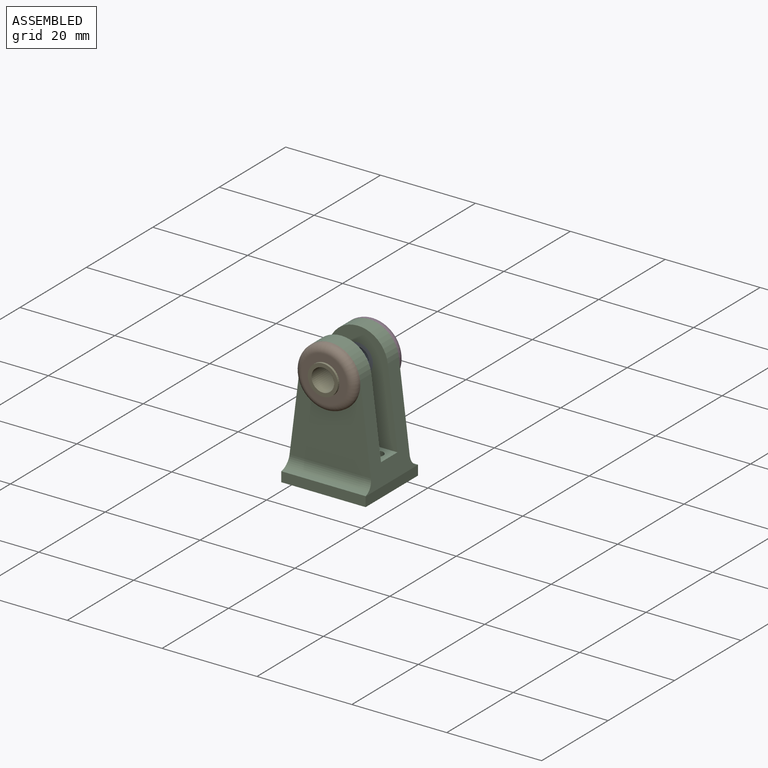
[diagram: assembled view]
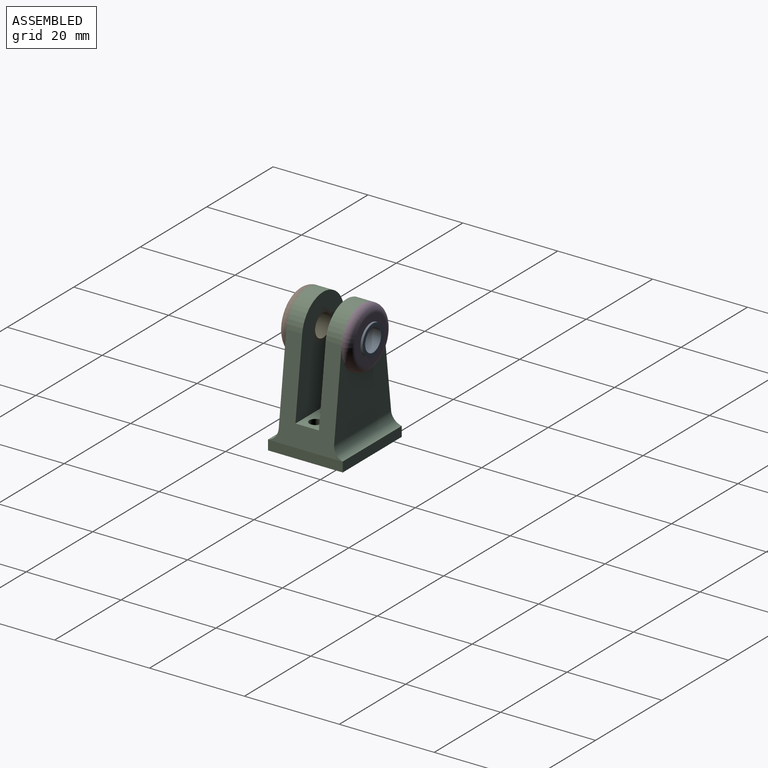
[diagram: assembled view, second angle]
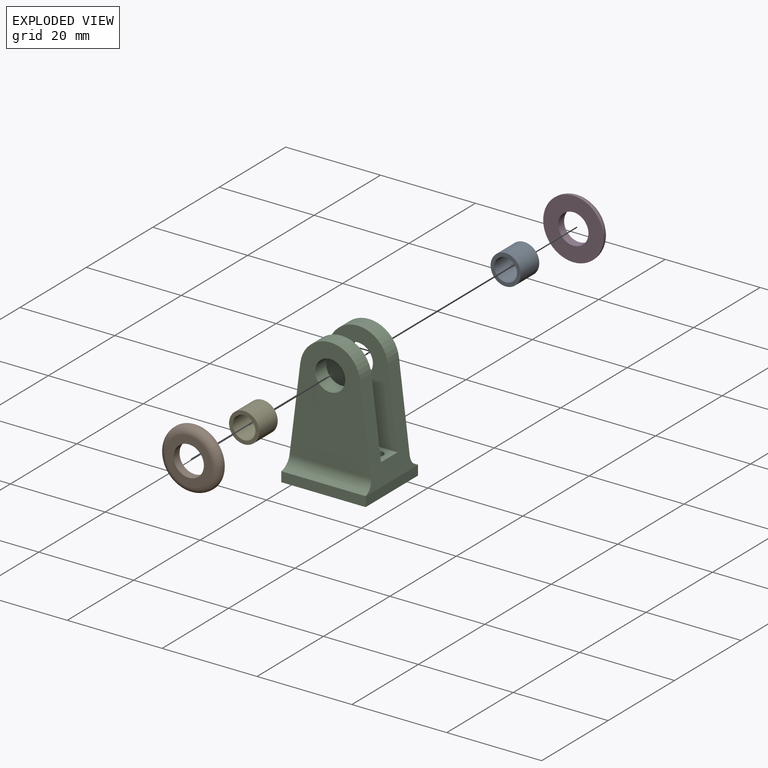
[diagram: exploded view]
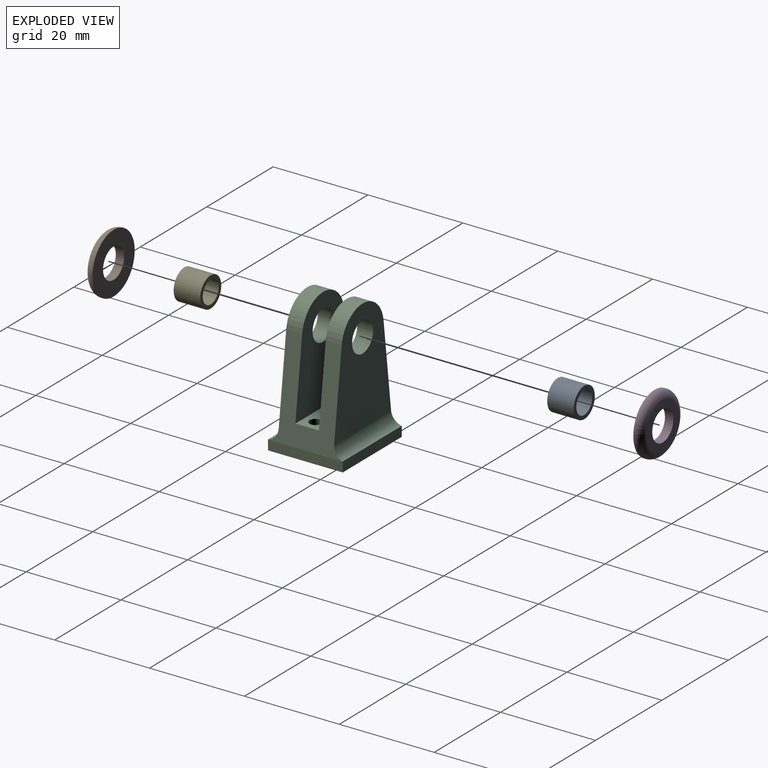
[diagram: exploded view, second angle]
ASSEMBLY  parts=5 mates=4
PART A: 4 faces, bbox 6.4x5.6x6.4 mm
  f0: cylinder r=2.39mm len=5.59mm, axis (0,1,0), area 83.8mm2, adj f2,f3
  f1: cylinder r=3.18mm len=6.36mm, axis (0,1,0), area 111.6mm2, adj f2,f3
  f2: plane 6.36x6.36mm, normal (0,-1,0), area 13.8mm2, adj f0,f1
  f3: plane 6.36x6.36mm, normal (0,1,0), area 13.8mm2, adj f0,f1
PART B: 5 faces, bbox 13.7x2.6x13.7 mm
  f0: cylinder r=3.19mm len=6.38mm, axis (0,-1,0), area 35.6mm2, adj f2,f3
  f1: cylinder r=6.35mm len=12.7mm, axis (0,-1,0), area 10.1mm2, adj f3,f4
  f2: plane 9.65x9.65mm, normal (0,1,0), area 41.2mm2, adj f0,f4
  f3: plane 12.7x12.7mm, normal (0,-1,0), area 94.8mm2, adj f0,f1
  f4: torus R=4.83mm, axis (0,-1,0), area 87.2mm2, adj f1,f2
PART C: 20 faces, bbox 17.8x15.7x28.2 mm
  f0: plane 20.65x15.75mm, normal (-0.99,0,-0.12), area 164.4mm2, adj f1,f4,f5,f9,f10,f11,f12,f13
  f1: cylinder r=6.35mm len=12.6mm, axis (0,-1,0), area 61.8mm2, adj f0,f2,f12,f14
  f2: plane 20.65x15.75mm, normal (0.99,0,-0.12), area 164.4mm2, adj f1,f5,f6,f9,f10,f11,f12,f13
  f3: cylinder r=3.17mm len=6.35mm, axis (0,-1,0), area 67.1mm2, adj f12,f14
  f4: plane 15.75x2.03mm, normal (-1,0,0), area 32mm2, adj f0,f7,f9,f10
  f5: cylinder r=6.35mm len=12.6mm, axis (0,-1,0), area 61.8mm2, adj f0,f2,f13,f16
  f6: plane 15.75x2.03mm, normal (1,0,0), area 32mm2, adj f2,f7,f9,f10
  f7: plane 17.78x15.75mm, normal (0,0,1), area 269.9mm2, adj f4,f6,f9,f10,f18,f19
  f8: cylinder r=3.17mm len=6.35mm, axis (0,-1,0), area 67.1mm2, adj f13,f16
  f9: plane 17.78x2.08mm, normal (0,1,0), area 37mm2, adj f0,f2,f4,f6,f7,f17
  f10: plane 17.78x2.08mm, normal (0,-1,0), area 37mm2, adj f0,f2,f4,f6,f7,f15
  f11: plane 16.7x4.95mm, normal (0,0,-1), area 72.6mm2, adj f0,f2,f12,f13,f18,f19
  f12: plane 21.89x16.7mm, normal (0,1,0), area 261mm2, adj f0,f1,f2,f3,f11
  f13: plane 21.89x16.7mm, normal (0,-1,0), area 261mm2, adj f0,f2,f5,f8,f11
  f14: plane 23.67x17.14mm, normal (0,-1,0), area 291mm2, adj f0,f1,f2,f3,f15
  f15: cylinder r=2.54mm len=17.77mm, axis (1,0,0), area 60.9mm2, adj f0,f2,f10,f14
  f16: plane 23.67x17.14mm, normal (0,1,0), area 291mm2, adj f0,f2,f5,f8,f17
  f17: cylinder r=2.54mm len=17.77mm, axis (1,0,0), area 60.9mm2, adj f0,f2,f9,f16
  f18: cylinder r=1.27mm len=6.35mm, axis (0,0,1), area 50.7mm2, adj f7,f11
  f19: cylinder r=1.27mm len=6.35mm, axis (0,0,1), area 50.7mm2, adj f7,f11
PART D: same geometry as B
PART E: same geometry as A
PLACE A rot(axis=(1,0,0),180deg) t=(-43.67,-3.22,12.38)mm
PLACE B rot(axis=(1,0,0),180deg) t=(-56.92,-11.54,12.38)mm
PLACE C rot(axis=(1,0,0),180deg) t=(-12.51,2.18,4.61)mm
PLACE D t=(-56.92,0.15,12.38)mm
PLACE E rot(axis=(-1,0,0),180deg) t=(-43.67,-13.76,12.38)mm
MATE fastened C.f1 <-> B.f0  axis (0,-1,0) through (-12.51,-11.54,12.38)mm
MATE fastened E.f0 <-> C.f1  axis (0,1,0) through (-12.51,-8.17,12.38)mm
MATE fastened C.f1 <-> D.f0  axis (0,1,0) through (-12.51,0.15,12.38)mm
MATE fastened A.f0 <-> C.f1  axis (0,-1,0) through (-12.51,-3.22,12.38)mm
